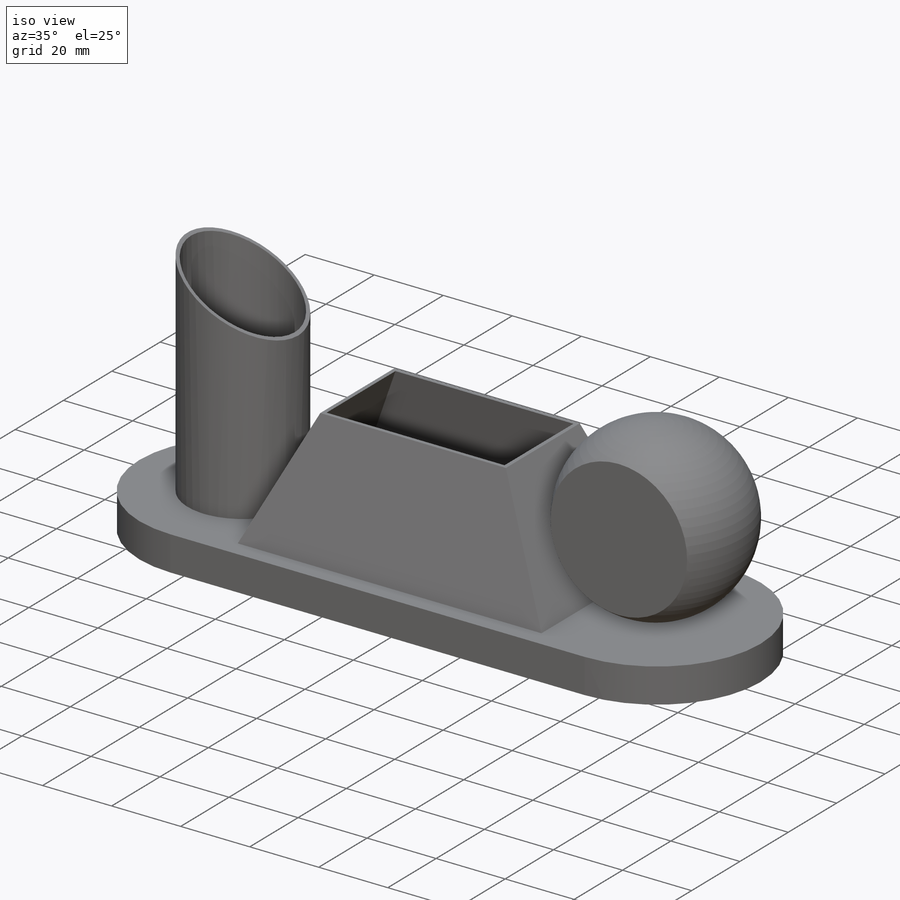
[diagram: iso view]
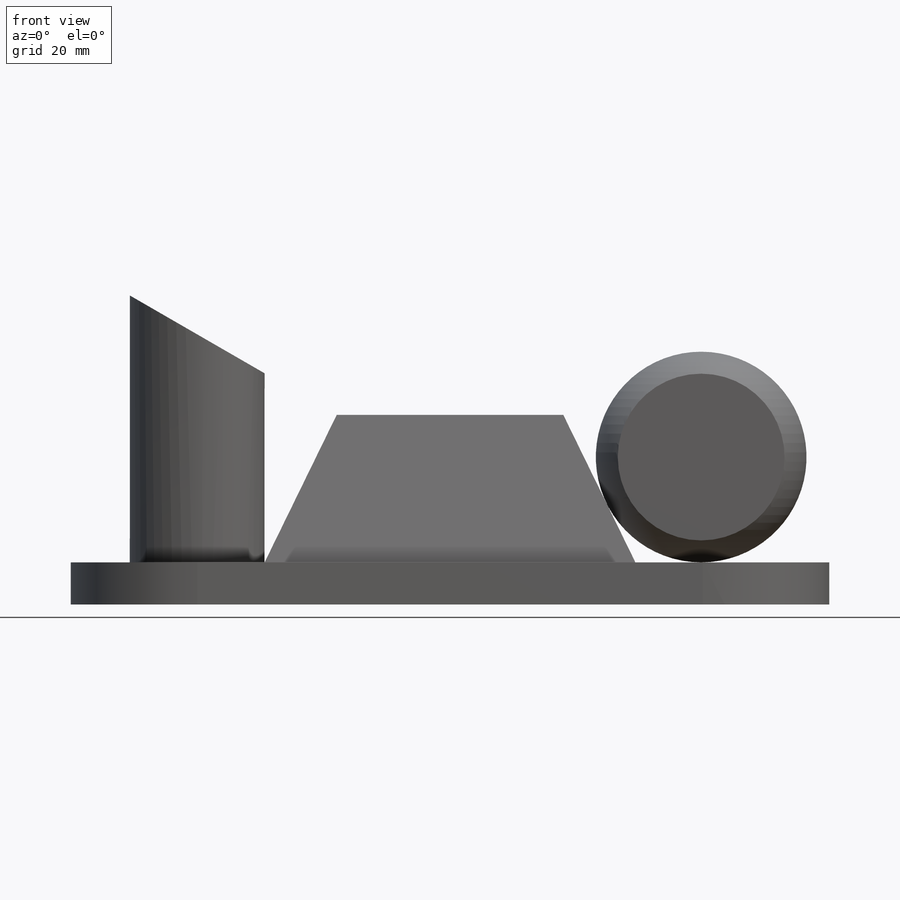
[diagram: front view]
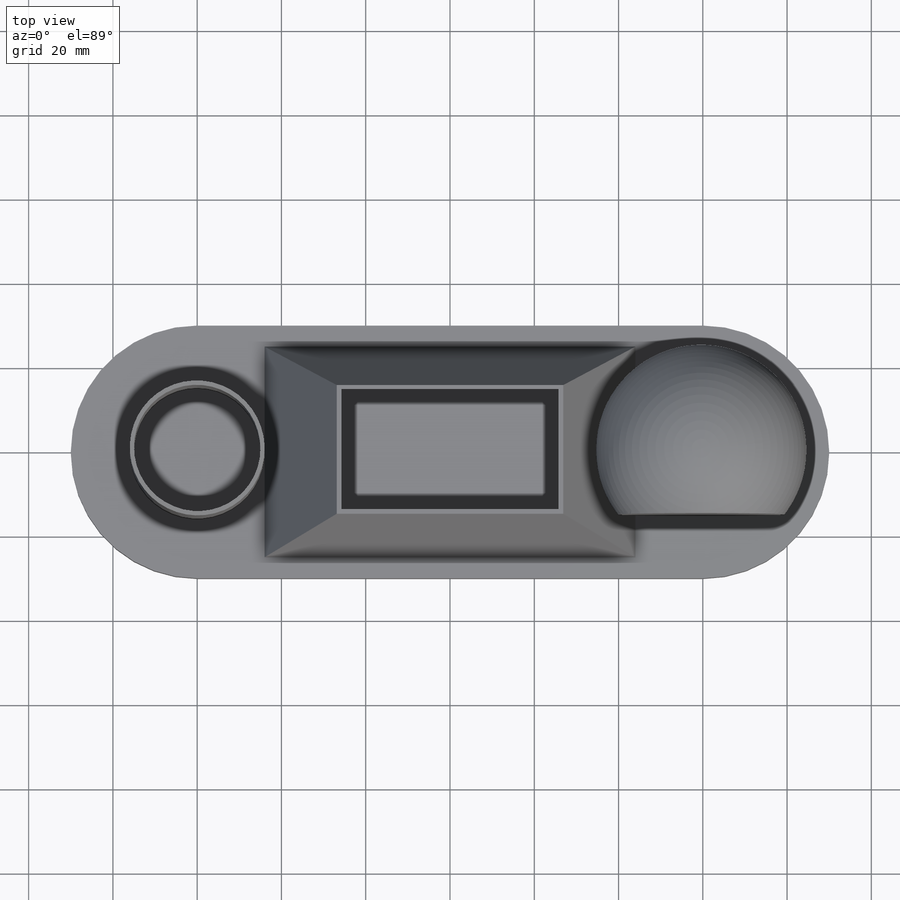
[diagram: top view]
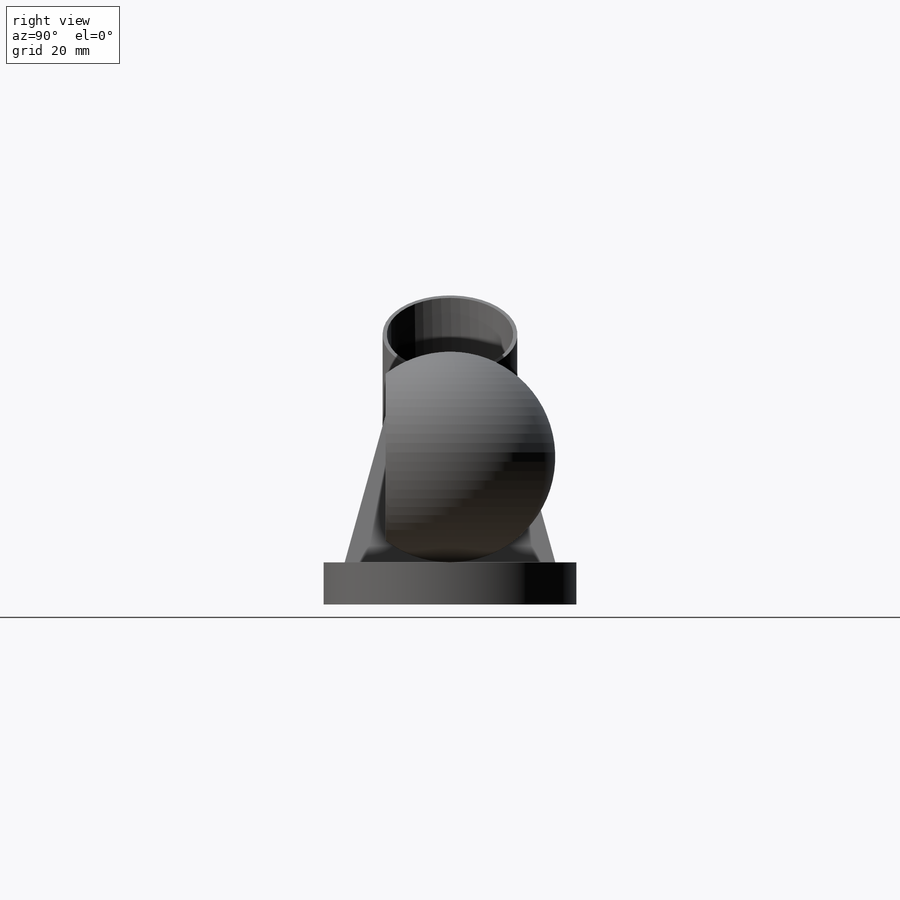
[diagram: right view]
SOLIDWORKS PART (.sldprt)
format: sldprt  version: not decoded by parser v0  size: 250,368 bytes
history: native  units: mm
features: sketch x8, cut_extrude x3, extrude x2, shell x2, material x1, revolve x1, plane x1 (+16 scaffold rows collapsed)
feature tree (34):
  scaffold x16  (default folders/planes/origin — collapsed)
  material  "Material <not specified>"
  sketch  "Sketch1"  dims[D1=30.0mm D2=60.0mm]
  extrude  "Extrude1"  Depth=10mm
  sketch  "Sketch2"  dims[D1=88.0mm D2=50.0mm]
  sketch  "Sketch3"  dims[D1=90.0mm]
  sketch  "Sketch4"  dims[D1=35.0mm]
  cut_extrude  "Extrude2"  Depth=50mm
  shell  "Shell1"  Thickness=1mm
  sketch  "Sketch5"
  extrude  "Extrude3"  Depth=90mm
  sketch  "Sketch7"  dims[c1.D1=~81.334079mm c2.D1=60.0deg]
  cut_extrude  "Extrude4"  Depth=90mm
  shell  "Shell2"  Thickness=1mm
  sketch  "Sketch8"  dims[D1=50.0mm]
  revolve  "Revolve1"  Angle=360deg
  plane  "Plane1"
  sketch  "Sketch10"  dims[D1=50.0mm]
  cut_extrude  "Extrude5"  Depth=90mm
decode coverage: 15 of 16 modeling features carry decoded parameters
note: ~ marks probable driven/reference dimensions
note: suppression state not decoded; provenance and decode notes live in map.json
